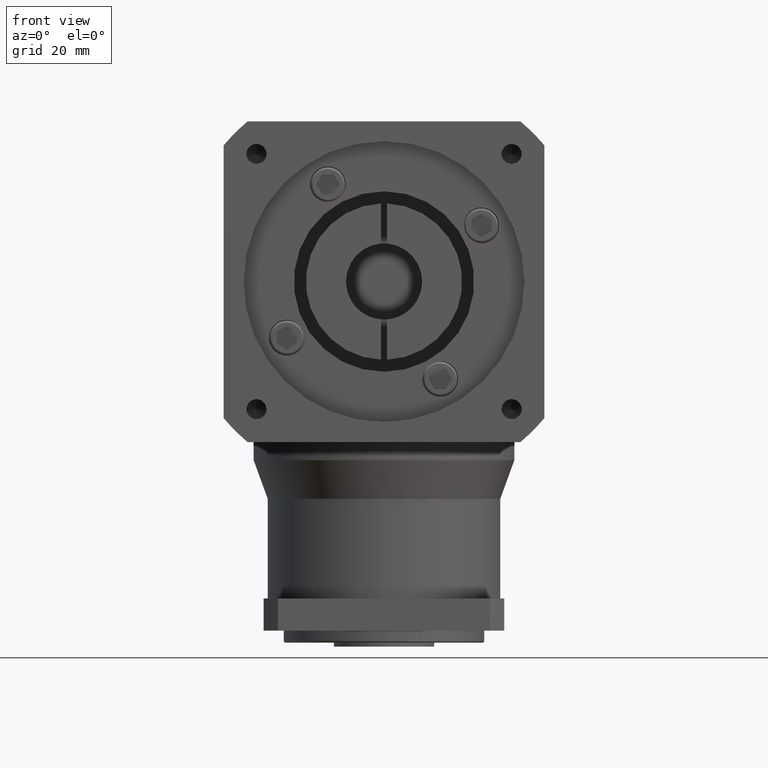
[diagram: clean part render]
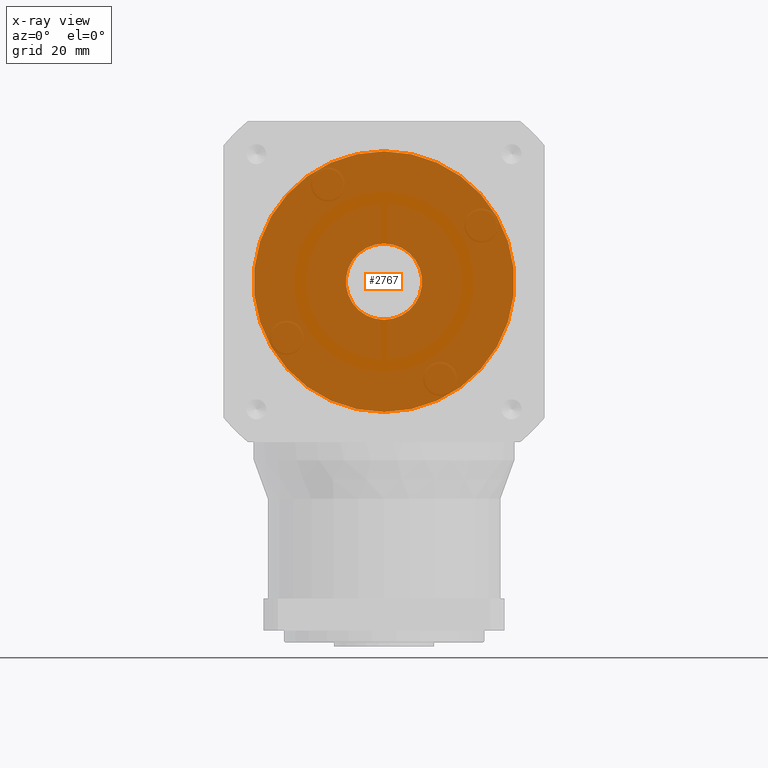
[diagram: x-ray — body ghosted, one internal face saturated and labeled with its STEP entity id]
A machine part, front view, then the same camera in x-ray: the body is ghosted and one INTERNAL B-rep face — a face not visible from any outside direction — is saturated and labeled: STEP entity #2767.
In plain terms, the highlighted planar face has unit normal (0, -1, 0).
Its self-contained STEP definition (entity closure, byte-faithful):
#457 = CARTESIAN_POINT ( 'NONE',  ( 3.980102097228898600E-015, -34.50000000000000000, 0.0000000000000000000 ) ) ;
#525 = EDGE_LOOP ( 'NONE', ( #1866, #1404 ) ) ;
#642 = AXIS2_PLACEMENT_3D ( 'NONE', #902, #983, #8576 ) ;
#902 = CARTESIAN_POINT ( 'NONE',  ( 0.0000000000000000000, -34.50000000000000000, 32.50000000000000000 ) ) ;
#983 = DIRECTION ( 'NONE',  ( 0.0000000000000000000, -1.000000000000000000, 0.0000000000000000000 ) ) ;
#1053 = AXIS2_PLACEMENT_3D ( 'NONE', #8115, #7524, #6142 ) ;
#1344 = CIRCLE ( 'NONE', #4302, 9.500000000000001800 ) ;
#1404 = ORIENTED_EDGE ( 'NONE', *, *, #4175, .T. ) ;
#1675 = AXIS2_PLACEMENT_3D ( 'NONE', #6376, #6100, #2644 ) ;
#1866 = ORIENTED_EDGE ( 'NONE', *, *, #2401, .T. ) ;
#1949 = CIRCLE ( 'NONE', #1053, 9.500000000000001800 ) ;
#2401 = EDGE_CURVE ( 'NONE', #4782, #8436, #1344, .T. ) ;
#2430 = AXIS2_PLACEMENT_3D ( 'NONE', #3107, #3229, #3246 ) ;
#2644 = DIRECTION ( 'NONE',  ( 0.0000000000000000000, 0.0000000000000000000, -1.000000000000000000 ) ) ;
#2767 = ADVANCED_FACE ( 'NONE', ( #7962, #4849 ), #3089, .F. ) ;
#2980 = EDGE_CURVE ( 'NONE', #7988, #3981, #5868, .T. ) ;
#3089 = PLANE ( 'NONE',  #2430 ) ;
#3107 = CARTESIAN_POINT ( 'NONE',  ( 0.0000000000000000000, -34.50000000000000000, 0.0000000000000000000 ) ) ;
#3229 = DIRECTION ( 'NONE',  ( 0.0000000000000000000, -1.000000000000000000, 0.0000000000000000000 ) ) ;
#3234 = EDGE_CURVE ( 'NONE', #3981, #7988, #7326, .T. ) ;
#3246 = DIRECTION ( 'NONE',  ( 0.0000000000000000000, -0.0000000000000000000, -1.000000000000000000 ) ) ;
#3715 = CARTESIAN_POINT ( 'NONE',  ( 0.0000000000000000000, -34.50000000000000000, 23.00000000000000000 ) ) ;
#3893 = ORIENTED_EDGE ( 'NONE', *, *, #3234, .F. ) ;
#3981 = VERTEX_POINT ( 'NONE', #8495 ) ;
#4175 = EDGE_CURVE ( 'NONE', #8436, #4782, #1949, .T. ) ;
#4302 = AXIS2_PLACEMENT_3D ( 'NONE', #7092, #6610, #7088 ) ;
#4782 = VERTEX_POINT ( 'NONE', #3715 ) ;
#4849 = FACE_OUTER_BOUND ( 'NONE', #5928, .T. ) ;
#4944 = CARTESIAN_POINT ( 'NONE',  ( 1.163414459189985300E-015, -34.50000000000000000, 42.00000000000000000 ) ) ;
#5395 = ORIENTED_EDGE ( 'NONE', *, *, #2980, .F. ) ;
#5868 = CIRCLE ( 'NONE', #1675, 32.50000000000000000 ) ;
#5928 = EDGE_LOOP ( 'NONE', ( #3893, #5395 ) ) ;
#6100 = DIRECTION ( 'NONE',  ( 0.0000000000000000000, -1.000000000000000000, 0.0000000000000000000 ) ) ;
#6142 = DIRECTION ( 'NONE',  ( 0.0000000000000000000, 0.0000000000000000000, -1.000000000000000000 ) ) ;
#6376 = CARTESIAN_POINT ( 'NONE',  ( 0.0000000000000000000, -34.50000000000000000, 32.50000000000000000 ) ) ;
#6610 = DIRECTION ( 'NONE',  ( 0.0000000000000000000, -1.000000000000000000, 0.0000000000000000000 ) ) ;
#7088 = DIRECTION ( 'NONE',  ( 0.0000000000000000000, 0.0000000000000000000, -1.000000000000000000 ) ) ;
#7092 = CARTESIAN_POINT ( 'NONE',  ( 0.0000000000000000000, -34.50000000000000000, 32.50000000000000000 ) ) ;
#7326 = CIRCLE ( 'NONE', #642, 32.50000000000000000 ) ;
#7524 = DIRECTION ( 'NONE',  ( 0.0000000000000000000, -1.000000000000000000, 0.0000000000000000000 ) ) ;
#7962 = FACE_BOUND ( 'NONE', #525, .T. ) ;
#7988 = VERTEX_POINT ( 'NONE', #457 ) ;
#8115 = CARTESIAN_POINT ( 'NONE',  ( 0.0000000000000000000, -34.50000000000000000, 32.50000000000000000 ) ) ;
#8436 = VERTEX_POINT ( 'NONE', #4944 ) ;
#8495 = CARTESIAN_POINT ( 'NONE',  ( 0.0000000000000000000, -34.50000000000000000, 65.00000000000000000 ) ) ;
#8576 = DIRECTION ( 'NONE',  ( 0.0000000000000000000, 0.0000000000000000000, -1.000000000000000000 ) ) ;